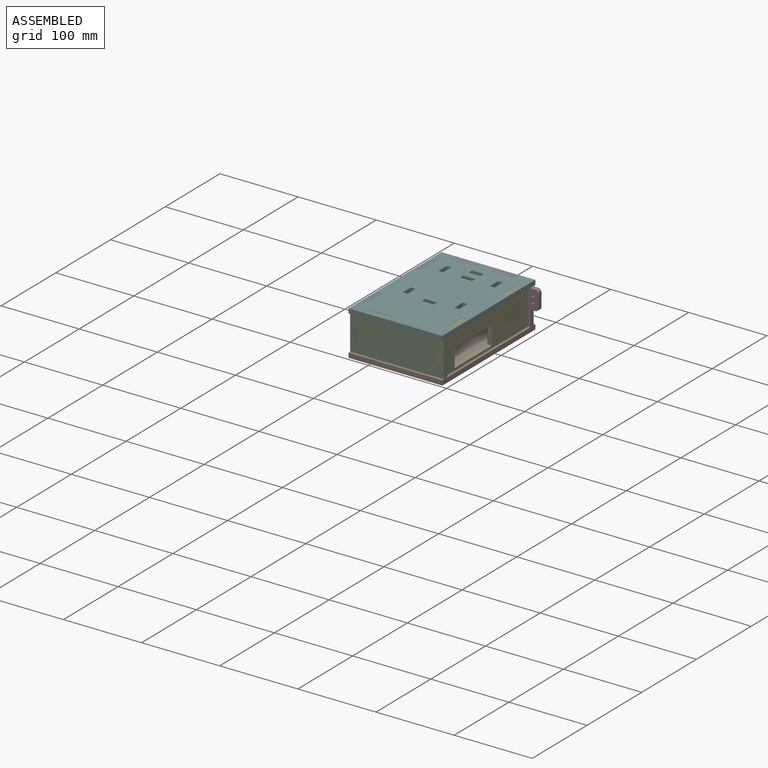
[diagram: assembled view]
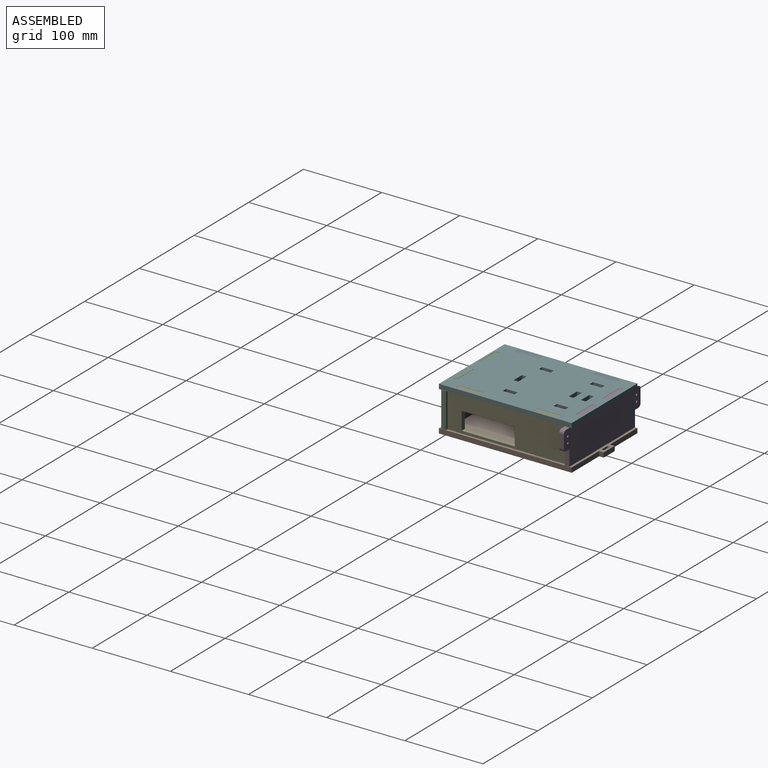
[diagram: assembled view, second angle]
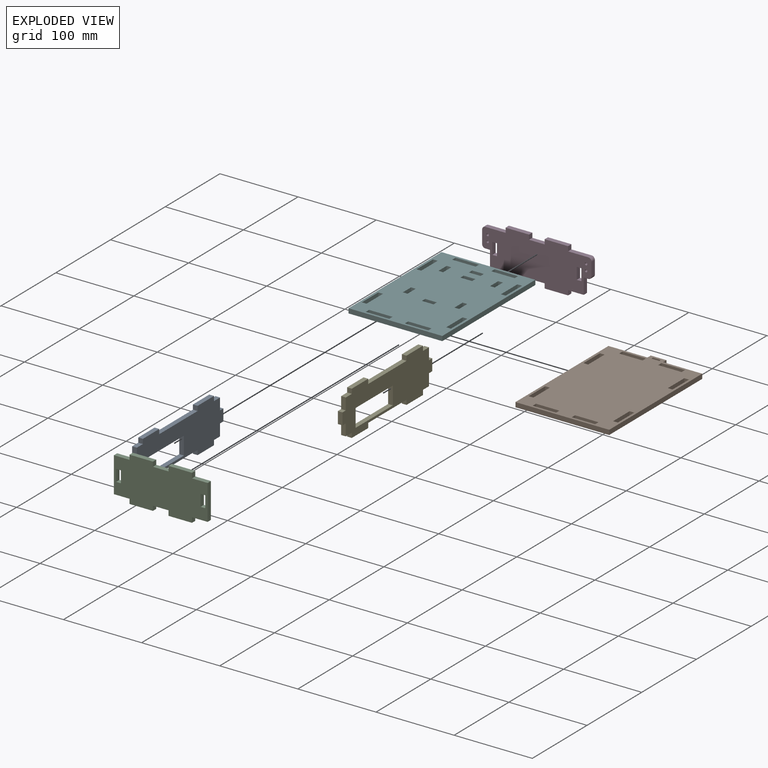
[diagram: exploded view]
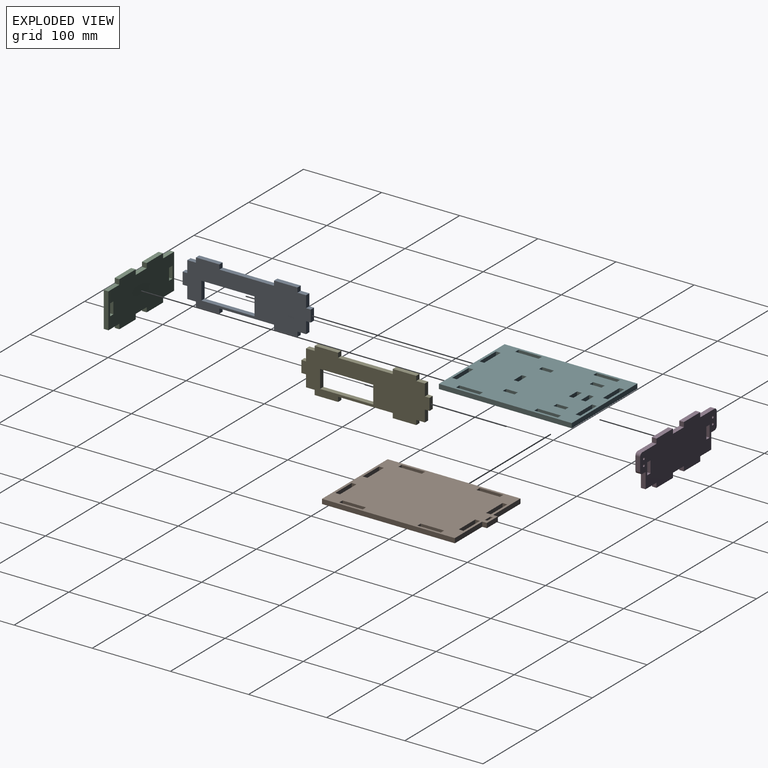
[diagram: exploded view, second angle]
ASSEMBLY  parts=6 mates=7
PART A: 34 faces, bbox 6x164x57 mm
  f0: plane 15x6mm, normal (0,-1,0), area 90mm2, adj f1,f31,f32,f33
  f1: plane 11x6mm, normal (0,0,-1), area 66mm2, adj f0,f2,f32,f33
  f2: plane 6x6mm, normal (0,-1,0), area 36mm2, adj f1,f3,f32,f33
  f3: plane 30x6mm, normal (0,0,-1), area 180mm2, adj f2,f4,f32,f33
  f4: plane 6x6mm, normal (0,1,0), area 36mm2, adj f3,f5,f32,f33
  f5: plane 70x6mm, normal (0,0,-1), area 420mm2, adj f4,f6,f32,f33
  f6: plane 6x6mm, normal (0,-1,0), area 36mm2, adj f5,f7,f32,f33
  f7: plane 30x6mm, normal (0,0,-1), area 180mm2, adj f6,f8,f32,f33
  f8: plane 6x6mm, normal (0,1,0), area 36mm2, adj f7,f9,f32,f33
  f9: plane 11x6mm, normal (0,0,-1), area 66mm2, adj f8,f10,f32,f33
  f10: plane 15x6mm, normal (0,1,0), area 90mm2, adj f9,f11,f32,f33
  f11: plane 6x6mm, normal (0,0,-1), area 36mm2, adj f10,f12,f32,f33
  f12: plane 15x6mm, normal (0,1,0), area 90mm2, adj f11,f13,f32,f33
  f13: plane 6x6mm, normal (0,0,1), area 36mm2, adj f12,f14,f32,f33
  f14: plane 15x6mm, normal (0,1,0), area 90mm2, adj f13,f15,f32,f33
  f15: plane 11x6mm, normal (0,0,1), area 66mm2, adj f14,f16,f32,f33
  f16: plane 6x6mm, normal (0,1,0), area 36mm2, adj f15,f17,f32,f33
  f17: plane 30x6mm, normal (0,0,1), area 180mm2, adj f16,f18,f32,f33
  f18: plane 6x6mm, normal (0,-1,0), area 36mm2, adj f17,f19,f32,f33
  f19: plane 70x6mm, normal (0,0,1), area 420mm2, adj f18,f20,f32,f33
  f20: plane 6x6mm, normal (0,1,0), area 36mm2, adj f19,f21,f32,f33
  f21: plane 30x6mm, normal (0,0,1), area 180mm2, adj f20,f22,f32,f33
  f22: plane 6x6mm, normal (0,-1,0), area 36mm2, adj f21,f23,f32,f33
  f23: plane 11x6mm, normal (0,0,1), area 66mm2, adj f22,f24,f32,f33
  f24: plane 15x6mm, normal (0,-1,0), area 90mm2, adj f23,f25,f32,f33
  f25: plane 6x6mm, normal (0,0,1), area 36mm2, adj f24,f26,f32,f33
  f26: plane 15x6mm, normal (0,-1,0), area 90mm2, adj f25,f31,f32,f33
  f27: plane 23x6mm, normal (0,-1,0), area 138mm2, adj f28,f30,f32,f33
  f28: plane 68x6mm, normal (0,0,1), area 408mm2, adj f27,f29,f32,f33
  f29: plane 23x6mm, normal (0,1,0), area 138mm2, adj f28,f30,f32,f33
  f30: plane 68x6mm, normal (0,0,-1), area 408mm2, adj f27,f29,f32,f33
  f31: plane 6x6mm, normal (0,0,-1), area 36mm2, adj f0,f26,f32,f33
  f32: plane 164x57mm, normal (1,0,0), area 6176mm2, adj f0,f1,f2,f3,f4,f5,f6,f7
  f33: plane 164x57mm, normal (-1,0,0), area 6176mm2, adj f0,f1,f2,f3,f4,f5,f6,f7
PART B: 46 faces, bbox 120x176x6 mm
  f0: plane 6x6mm, normal (0,1,0), area 36mm2, adj f1,f43,f44,f45
  f1: plane 30x6mm, normal (1,0,0), area 180mm2, adj f0,f2,f44,f45
  f2: plane 6x6mm, normal (0,-1,0), area 36mm2, adj f1,f43,f44,f45
  f3: plane 6x6mm, normal (1,0,0), area 36mm2, adj f4,f34,f44,f45
  f4: plane 30x6mm, normal (0,-1,0), area 180mm2, adj f3,f5,f44,f45
  f5: plane 6x6mm, normal (-1,0,0), area 36mm2, adj f4,f34,f44,f45
  f6: plane 30x6mm, normal (0,-1,0), area 180mm2, adj f7,f35,f44,f45
  f7: plane 6x6mm, normal (-1,0,0), area 36mm2, adj f6,f8,f44,f45
  f8: plane 30x6mm, normal (0,1,0), area 180mm2, adj f7,f35,f44,f45
  f9: plane 30x6mm, normal (0,-1,0), area 180mm2, adj f10,f36,f44,f45
  f10: plane 6x6mm, normal (-1,0,0), area 36mm2, adj f9,f11,f44,f45
  f11: plane 30x6mm, normal (0,1,0), area 180mm2, adj f10,f36,f44,f45
  f12: plane 6x6mm, normal (-1,0,0), area 36mm2, adj f13,f37,f44,f45
  f13: plane 50x6mm, normal (0,1,0), area 300mm2, adj f12,f14,f44,f45
  f14: plane 170x6mm, normal (-1,0,0), area 1020mm2, adj f13,f15,f44,f45
  f15: plane 120x6mm, normal (0,-1,0), area 720mm2, adj f14,f16,f44,f45
  f16: plane 170x6mm, normal (1,0,0), area 1020mm2, adj f15,f17,f44,f45
  f17: plane 50x6mm, normal (0,1,0), area 300mm2, adj f16,f18,f44,f45
  f18: plane 6x6mm, normal (1,0,0), area 36mm2, adj f17,f37,f44,f45
  f19: plane 6x3mm, normal (-1,0,0), area 18mm2, adj f20,f38,f44,f45
  f20: plane 10x6mm, normal (0,1,0), area 60mm2, adj f19,f21,f44,f45
  f21: plane 6x3mm, normal (1,0,0), area 18mm2, adj f20,f38,f44,f45
  f22: plane 30x6mm, normal (-1,0,0), area 180mm2, adj f23,f39,f44,f45
  f23: plane 6x6mm, normal (0,1,0), area 36mm2, adj f22,f24,f44,f45
  f24: plane 30x6mm, normal (1,0,0), area 180mm2, adj f23,f39,f44,f45
  f25: plane 30x6mm, normal (-1,0,0), area 180mm2, adj f26,f40,f44,f45
  f26: plane 6x6mm, normal (0,1,0), area 36mm2, adj f25,f27,f44,f45
  f27: plane 30x6mm, normal (1,0,0), area 180mm2, adj f26,f40,f44,f45
  f28: plane 30x6mm, normal (-1,0,0), area 180mm2, adj f29,f41,f44,f45
  f29: plane 6x6mm, normal (0,1,0), area 36mm2, adj f28,f30,f44,f45
  f30: plane 30x6mm, normal (1,0,0), area 180mm2, adj f29,f41,f44,f45
  f31: plane 30x6mm, normal (0,-1,0), area 180mm2, adj f32,f42,f44,f45
  f32: plane 6x6mm, normal (-1,0,0), area 36mm2, adj f31,f33,f44,f45
  f33: plane 30x6mm, normal (0,1,0), area 180mm2, adj f32,f42,f44,f45
  f34: plane 30x6mm, normal (0,1,0), area 180mm2, adj f3,f5,f44,f45
  f35: plane 6x6mm, normal (1,0,0), area 36mm2, adj f6,f8,f44,f45
  f36: plane 6x6mm, normal (1,0,0), area 36mm2, adj f9,f11,f44,f45
  f37: plane 20x6mm, normal (0,1,0), area 120mm2, adj f12,f18,f44,f45
  f38: plane 10x6mm, normal (0,-1,0), area 60mm2, adj f19,f21,f44,f45
  f39: plane 6x6mm, normal (0,-1,0), area 36mm2, adj f22,f24,f44,f45
  f40: plane 6x6mm, normal (0,-1,0), area 36mm2, adj f25,f27,f44,f45
  f41: plane 6x6mm, normal (0,-1,0), area 36mm2, adj f28,f30,f44,f45
  f42: plane 6x6mm, normal (1,0,0), area 36mm2, adj f31,f33,f44,f45
  f43: plane 30x6mm, normal (-1,0,0), area 180mm2, adj f0,f2,f44,f45
  f44: plane 176x120mm, normal (0,0,1), area 19050mm2, adj f0,f1,f2,f3,f4,f5,f6,f7
  f45: plane 176x120mm, normal (0,0,-1), area 19050mm2, adj f0,f1,f2,f3,f4,f5,f6,f7
PART C: 30 faces, bbox 120x6x57.9 mm
  f0: plane 6x6mm, normal (0,0,-1), area 36mm2, adj f1,f27,f28,f29
  f1: plane 15x6mm, normal (-1,0,0), area 90mm2, adj f0,f2,f28,f29
  f2: plane 6x6mm, normal (0,0,1), area 36mm2, adj f1,f27,f28,f29
  f3: plane 15x6mm, normal (1,0,0), area 90mm2, adj f4,f25,f28,f29
  f4: plane 6x6mm, normal (0,0,-1), area 36mm2, adj f3,f5,f28,f29
  f5: plane 15x6mm, normal (-1,0,0), area 90mm2, adj f4,f25,f28,f29
  f6: plane 30x6mm, normal (0,0,-1), area 180mm2, adj f7,f26,f28,f29
  f7: plane 6x6mm, normal (1,0,0), area 36mm2, adj f6,f8,f28,f29
  f8: plane 20x6mm, normal (0,0,-1), area 120mm2, adj f7,f9,f28,f29
  f9: plane 6.43x6mm, normal (-1,0,0), area 38.5mm2, adj f8,f10,f28,f29
  f10: plane 30x6mm, normal (0,0,-1), area 180mm2, adj f9,f11,f28,f29
  f11: plane 6.43x6mm, normal (1,0,0), area 38.5mm2, adj f10,f12,f28,f29
  f12: plane 20x6mm, normal (0,0,-1), area 120mm2, adj f11,f13,f28,f29
  f13: plane 45x6mm, normal (1,0,0), area 270mm2, adj f12,f14,f28,f29
  f14: plane 20x6mm, normal (0,0,1), area 120mm2, adj f13,f15,f28,f29
  f15: plane 6.43x6mm, normal (1,0,0), area 38.5mm2, adj f14,f16,f28,f29
  f16: plane 30x6mm, normal (0,0,1), area 180mm2, adj f15,f17,f28,f29
  f17: plane 6.43x6mm, normal (-1,0,0), area 38.5mm2, adj f16,f18,f28,f29
  f18: plane 20x6mm, normal (0,0,1), area 120mm2, adj f17,f19,f28,f29
  f19: plane 6x6mm, normal (1,0,0), area 36mm2, adj f18,f20,f28,f29
  f20: plane 30x6mm, normal (0,0,1), area 180mm2, adj f19,f21,f28,f29
  f21: plane 6x6mm, normal (-1,0,0), area 36mm2, adj f20,f22,f28,f29
  f22: plane 20x6mm, normal (0,0,1), area 120mm2, adj f21,f23,f28,f29
  f23: plane 45x6mm, normal (-1,0,0), area 270mm2, adj f22,f24,f28,f29
  f24: plane 20x6mm, normal (0,0,-1), area 120mm2, adj f23,f26,f28,f29
  f25: plane 6x6mm, normal (0,0,1), area 36mm2, adj f3,f5,f28,f29
  f26: plane 6x6mm, normal (-1,0,0), area 36mm2, adj f6,f24,f28,f29
  f27: plane 15x6mm, normal (1,0,0), area 90mm2, adj f0,f2,f28,f29
  f28: plane 120x57.85mm, normal (0,-1,0), area 5965.5mm2, adj f0,f1,f2,f3,f4,f5,f6,f7
  f29: plane 120x57.85mm, normal (0,1,0), area 5965.5mm2, adj f0,f1,f2,f3,f4,f5,f6,f7
PART D: 42 faces, bbox 140x6x57 mm
  f0: plane 6x6mm, normal (0,0,-1), area 36mm2, adj f1,f39,f40,f41
  f1: plane 15x6mm, normal (-1,0,0), area 90mm2, adj f0,f2,f40,f41
  f2: plane 6x6mm, normal (0,0,1), area 36mm2, adj f1,f39,f40,f41
  f3: plane 6x6mm, normal (0,0,-1), area 36mm2, adj f4,f33,f40,f41
  f4: plane 15x6mm, normal (-1,0,0), area 90mm2, adj f3,f5,f40,f41
  f5: plane 6x6mm, normal (0,0,1), area 36mm2, adj f4,f33,f40,f41
  f6: plane 6x6mm, normal (1,0,0), area 36mm2, adj f7,f38,f40,f41
  f7: plane 20x6mm, normal (0,0,-1), area 120mm2, adj f6,f8,f40,f41
  f8: plane 6x6mm, normal (-1,0,0), area 36mm2, adj f7,f9,f40,f41
  f9: plane 30x6mm, normal (0,0,-1), area 180mm2, adj f8,f10,f40,f41
  f10: plane 6x6mm, normal (1,0,0), area 36mm2, adj f9,f11,f40,f41
  f11: plane 20x6mm, normal (0,0,-1), area 120mm2, adj f10,f12,f40,f41
  f12: plane 20x6mm, normal (1,0,0), area 120mm2, adj f11,f13,f40,f41
  f13: plane 6x6mm, normal (0,0,-1), area 36mm2, adj f12,f14,f40,f41
  f14: cylinder r=4mm len=6mm, axis (0,1,0), area 37.7mm2, adj f13,f15,f40,f41
  f15: plane 17x6mm, normal (1,0,0), area 102mm2, adj f14,f16,f40,f41
  f16: cylinder r=4mm len=6mm, axis (0,1,0), area 37.7mm2, adj f15,f17,f40,f41
  f17: plane 26x6mm, normal (0,0,1), area 156mm2, adj f16,f18,f40,f41
  f18: plane 6x6mm, normal (1,0,0), area 36mm2, adj f17,f19,f40,f41
  f19: plane 30x6mm, normal (0,0,1), area 180mm2, adj f18,f20,f40,f41
  f20: plane 6x6mm, normal (-1,0,0), area 36mm2, adj f19,f21,f40,f41
  f21: plane 20x6mm, normal (0,0,1), area 120mm2, adj f20,f22,f40,f41
  f22: plane 6x6mm, normal (1,0,0), area 36mm2, adj f21,f23,f40,f41
  f23: plane 30x6mm, normal (0,0,1), area 180mm2, adj f22,f24,f40,f41
  f24: plane 6x6mm, normal (-1,0,0), area 36mm2, adj f23,f25,f40,f41
  f25: plane 26x6mm, normal (0,0,1), area 156mm2, adj f24,f26,f40,f41
  f26: cylinder r=4mm len=6mm, axis (0,1,0), area 37.7mm2, adj f25,f27,f40,f41
  f27: plane 17x6mm, normal (-1,0,0), area 102mm2, adj f26,f28,f40,f41
  f28: cylinder r=4mm len=6mm, axis (0,1,0), area 37.7mm2, adj f27,f29,f40,f41
  f29: plane 6x6mm, normal (0,0,-1), area 36mm2, adj f28,f30,f40,f41
  f30: plane 20x6mm, normal (-1,0,0), area 120mm2, adj f29,f31,f40,f41
  f31: plane 20x6mm, normal (0,0,-1), area 120mm2, adj f30,f32,f40,f41
  f32: plane 6x6mm, normal (-1,0,0), area 36mm2, adj f31,f38,f40,f41
  f33: plane 15x6mm, normal (1,0,0), area 90mm2, adj f3,f5,f40,f41
  f34: cylinder r=1.5mm len=6mm, axis (0,1,0), area 56.5mm2, adj f40,f41
  f35: cylinder r=1.5mm len=6mm, axis (0,1,0), area 56.5mm2, adj f40,f41
  f36: cylinder r=1.5mm len=6mm, axis (0,1,0), area 56.5mm2, adj f40,f41
  f37: cylinder r=1.5mm len=6mm, axis (0,1,0), area 56.5mm2, adj f40,f41
  f38: plane 30x6mm, normal (0,0,-1), area 180mm2, adj f6,f32,f40,f41
  f39: plane 15x6mm, normal (1,0,0), area 90mm2, adj f0,f2,f40,f41
  f40: plane 140x57mm, normal (0,-1,0), area 6398mm2, adj f0,f1,f2,f3,f4,f5,f6,f7
  f41: plane 140x57mm, normal (0,1,0), area 6398mm2, adj f0,f1,f2,f3,f4,f5,f6,f7
PART E: same geometry as A
PART F: 66 faces, bbox 120x170x6 mm
  f0: plane 30x6mm, normal (0,-1,0), area 180mm2, adj f1,f63,f64,f65
  f1: plane 6x6mm, normal (-1,0,0), area 36mm2, adj f0,f2,f64,f65
  f2: plane 30x6mm, normal (0,1,0), area 180mm2, adj f1,f63,f64,f65
  f3: plane 6x6mm, normal (-1,0,0), area 36mm2, adj f4,f48,f64,f65
  f4: plane 30x6mm, normal (0,1,0), area 180mm2, adj f3,f5,f64,f65
  f5: plane 6x6mm, normal (1,0,0), area 36mm2, adj f4,f48,f64,f65
  f6: plane 6x6mm, normal (-1,0,0), area 36mm2, adj f7,f49,f64,f65
  f7: plane 30x6mm, normal (0,1,0), area 180mm2, adj f6,f8,f64,f65
  f8: plane 6x6mm, normal (1,0,0), area 36mm2, adj f7,f49,f64,f65
  f9: plane 6x6mm, normal (-1,0,0), area 36mm2, adj f10,f50,f64,f65
  f10: plane 30x6mm, normal (0,1,0), area 180mm2, adj f9,f11,f64,f65
  f11: plane 6x6mm, normal (1,0,0), area 36mm2, adj f10,f50,f64,f65
  f12: plane 30x6mm, normal (1,0,0), area 180mm2, adj f13,f51,f64,f65
  f13: plane 6x6mm, normal (0,-1,0), area 36mm2, adj f12,f14,f64,f65
  f14: plane 30x6mm, normal (-1,0,0), area 180mm2, adj f13,f51,f64,f65
  f15: plane 30x6mm, normal (1,0,0), area 180mm2, adj f16,f52,f64,f65
  f16: plane 6x6mm, normal (0,-1,0), area 36mm2, adj f15,f17,f64,f65
  f17: plane 30x6mm, normal (-1,0,0), area 180mm2, adj f16,f52,f64,f65
  f18: plane 30x6mm, normal (1,0,0), area 180mm2, adj f19,f53,f64,f65
  f19: plane 6x6mm, normal (0,-1,0), area 36mm2, adj f18,f20,f64,f65
  f20: plane 30x6mm, normal (-1,0,0), area 180mm2, adj f19,f53,f64,f65
  f21: plane 170x6mm, normal (-1,0,0), area 1020mm2, adj f22,f54,f64,f65
  f22: plane 120x6mm, normal (0,-1,0), area 720mm2, adj f21,f23,f64,f65
  f23: plane 170x6mm, normal (1,0,0), area 1020mm2, adj f22,f54,f64,f65
  f24: plane 15x6mm, normal (1,0,0), area 90mm2, adj f25,f55,f64,f65
  f25: plane 6x6mm, normal (0,-1,0), area 36mm2, adj f24,f26,f64,f65
  f26: plane 15x6mm, normal (-1,0,0), area 90mm2, adj f25,f55,f64,f65
  f27: plane 6x6mm, normal (1,0,0), area 36mm2, adj f28,f56,f64,f65
  f28: plane 15x6mm, normal (0,-1,0), area 90mm2, adj f27,f29,f64,f65
  f29: plane 6x6mm, normal (-1,0,0), area 36mm2, adj f28,f56,f64,f65
  f30: plane 6x6mm, normal (1,0,0), area 36mm2, adj f31,f57,f64,f65
  f31: plane 15x6mm, normal (0,-1,0), area 90mm2, adj f30,f32,f64,f65
  f32: plane 6x6mm, normal (-1,0,0), area 36mm2, adj f31,f57,f64,f65
  f33: plane 6x6mm, normal (1,0,0), area 36mm2, adj f34,f58,f64,f65
  f34: plane 15x6mm, normal (0,-1,0), area 90mm2, adj f33,f35,f64,f65
  f35: plane 6x6mm, normal (-1,0,0), area 36mm2, adj f34,f58,f64,f65
  f36: plane 6x6mm, normal (0,-1,0), area 36mm2, adj f37,f59,f64,f65
  f37: plane 15x6mm, normal (-1,0,0), area 90mm2, adj f36,f38,f64,f65
  f38: plane 6x6mm, normal (0,1,0), area 36mm2, adj f37,f59,f64,f65
  f39: plane 6x6mm, normal (0,-1,0), area 36mm2, adj f40,f60,f64,f65
  f40: plane 15x6mm, normal (-1,0,0), area 90mm2, adj f39,f41,f64,f65
  f41: plane 6x6mm, normal (0,1,0), area 36mm2, adj f40,f60,f64,f65
  f42: plane 6x6mm, normal (0,-1,0), area 36mm2, adj f43,f61,f64,f65
  f43: plane 15x6mm, normal (-1,0,0), area 90mm2, adj f42,f44,f64,f65
  f44: plane 6x6mm, normal (0,1,0), area 36mm2, adj f43,f61,f64,f65
  f45: plane 30x6mm, normal (1,0,0), area 180mm2, adj f46,f62,f64,f65
  f46: plane 6x6mm, normal (0,-1,0), area 36mm2, adj f45,f47,f64,f65
  f47: plane 30x6mm, normal (-1,0,0), area 180mm2, adj f46,f62,f64,f65
  f48: plane 30x6mm, normal (0,-1,0), area 180mm2, adj f3,f5,f64,f65
  f49: plane 30x6mm, normal (0,-1,0), area 180mm2, adj f6,f8,f64,f65
  f50: plane 30x6mm, normal (0,-1,0), area 180mm2, adj f9,f11,f64,f65
  f51: plane 6x6mm, normal (0,1,0), area 36mm2, adj f12,f14,f64,f65
  f52: plane 6x6mm, normal (0,1,0), area 36mm2, adj f15,f17,f64,f65
  f53: plane 6x6mm, normal (0,1,0), area 36mm2, adj f18,f20,f64,f65
  f54: plane 120x6mm, normal (0,1,0), area 720mm2, adj f21,f23,f64,f65
  f55: plane 6x6mm, normal (0,1,0), area 36mm2, adj f24,f26,f64,f65
  f56: plane 15x6mm, normal (0,1,0), area 90mm2, adj f27,f29,f64,f65
  f57: plane 15x6mm, normal (0,1,0), area 90mm2, adj f30,f32,f64,f65
  f58: plane 15x6mm, normal (0,1,0), area 90mm2, adj f33,f35,f64,f65
  f59: plane 15x6mm, normal (1,0,0), area 90mm2, adj f36,f38,f64,f65
  f60: plane 15x6mm, normal (1,0,0), area 90mm2, adj f39,f41,f64,f65
  f61: plane 15x6mm, normal (1,0,0), area 90mm2, adj f42,f44,f64,f65
  f62: plane 6x6mm, normal (0,1,0), area 36mm2, adj f45,f47,f64,f65
  f63: plane 6x6mm, normal (1,0,0), area 36mm2, adj f0,f2,f64,f65
  f64: plane 170x120mm, normal (0,0,1), area 18330mm2, adj f0,f1,f2,f3,f4,f5,f6,f7
  f65: plane 170x120mm, normal (0,0,-1), area 18330mm2, adj f0,f1,f2,f3,f4,f5,f6,f7
PLACE A t=(-37.64,64.1,109.59)mm
PLACE B t=(19.36,64.1,80.88)mm
PLACE C t=(19.36,-11.9,109.59)mm
PLACE D t=(-2.82,146.1,95.64)mm
PLACE E t=(70.36,64.1,109.59)mm
PLACE F t=(10.53,74.32,132.3)mm
MATE slider A.f31 <-> C.f25  axis (0,0,-1) through (-34.64,-14.9,102.09)mm
MATE slider E.f31 <-> C.f2  axis (0,0,-1) through (73.36,-14.9,102.09)mm
MATE slider D.f0 <-> E.f13  axis (0,0,-1) through (73.36,143.1,117.09)mm
MATE slider F.f9 <-> C.f15  axis (-1,0,0) through (59.36,-14.9,135.3)mm
MATE slider E.f31 <-> C.f2  axis (0,0,-1) through (73.36,-14.9,102.09)mm
MATE slider C.f11 <-> B.f10  axis (1,0,0) through (59.36,-14.9,83.88)mm
MATE slider A.f31 <-> C.f25  axis (0,0,-1) through (-34.64,-14.9,102.09)mm
